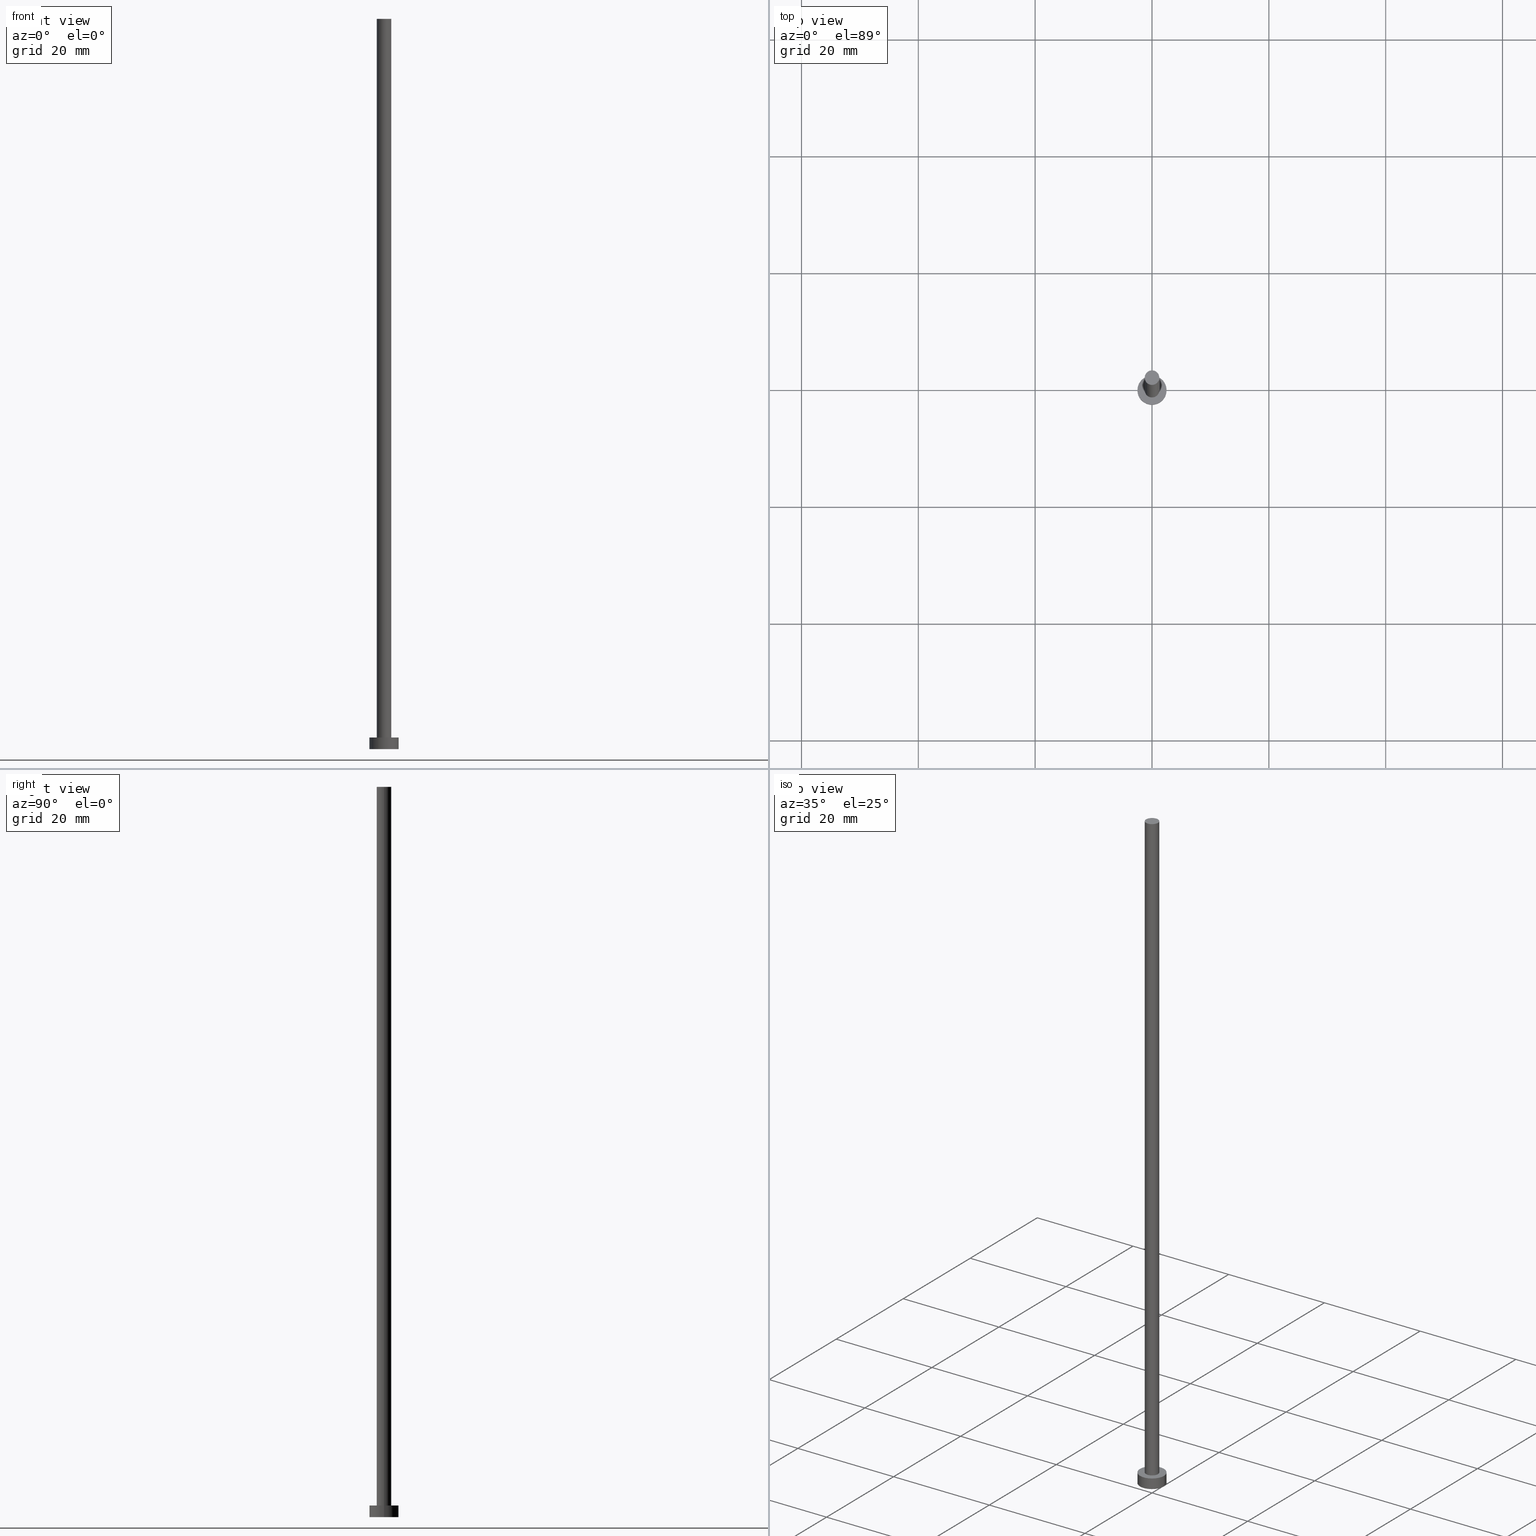
[diagram: canonical four-view strip — front | top / right | iso, engineering-drawing reading convention]
A machine part, canonical four-view strip (front | top / right | iso — engineering-drawing reading convention). The complete STEP part file that produces these views, byte-faithful:
ISO-10303-21;
HEADER;
FILE_DESCRIPTION (( 'STEP AP203' ),
    '1' );
FILE_NAME ('acdf.STEP',
    '2023-02-13T14:28:22',
    ( '' ),
    ( '' ),
    'SwSTEP 2.0',
    'SolidWorks 2019',
    '' );
FILE_SCHEMA (( 'CONFIG_CONTROL_DESIGN' ));
ENDSEC;

DATA;
#1 = CIRCLE ( 'NONE', #147, 1.250000000000000000 ) ;
#2 = ORIENTED_EDGE ( 'NONE', *, *, #86, .F. ) ;
#3 = DIRECTION ( 'NONE',  ( 1.000000000000000000, 0.000000000000000000, -0.000000000000000000 ) ) ;
#4 = DATE_AND_TIME ( #214, #164 ) ;
#5 = CC_DESIGN_DATE_AND_TIME_ASSIGNMENT ( #192, #190, ( #255 ) ) ;
#6 = PERSON_AND_ORGANIZATION ( #58, #231 ) ;
#7 = CARTESIAN_POINT ( 'NONE',  ( 2.500000000000000000, 3.061616997868383141E-16, 2.000000000000000000 ) ) ;
#8 = DIRECTION ( 'NONE',  ( 0.000000000000000000, 0.000000000000000000, 1.000000000000000000 ) ) ;
#9 = EDGE_CURVE ( 'NONE', #245, #208, #239, .T. ) ;
#10 = APPROVAL_DATE_TIME ( #56, #29 ) ;
#11 = DIRECTION ( 'NONE',  ( -0.000000000000000000, -0.000000000000000000, -1.000000000000000000 ) ) ;
#12 = PLANE ( 'NONE',  #114 ) ;
#13 = ORIENTED_EDGE ( 'NONE', *, *, #24, .T. ) ;
#14 = PERSON_AND_ORGANIZATION ( #58, #231 ) ;
#15 = ADVANCED_FACE ( 'NONE', ( #41 ), #99, .T. ) ;
#16 = CARTESIAN_POINT ( 'NONE',  ( 0.000000000000000000, 0.000000000000000000, 2.000000000000000000 ) ) ;
#17 = ORIENTED_EDGE ( 'NONE', *, *, #139, .F. ) ;
#18 = CC_DESIGN_DATE_AND_TIME_ASSIGNMENT ( #136, #177, ( #244 ) ) ;
#19 = ORIENTED_EDGE ( 'NONE', *, *, #24, .F. ) ;
#20 = VECTOR ( 'NONE', #11, 1000.000000000000000 ) ;
#21 = PERSON_AND_ORGANIZATION_ROLE ( 'creator' ) ;
#22 = ORIENTED_EDGE ( 'NONE', *, *, #201, .T. ) ;
#23 = APPROVAL_STATUS ( 'not_yet_approved' ) ;
#24 = EDGE_CURVE ( 'NONE', #78, #216, #228, .T. ) ;
#25 = DIRECTION ( 'NONE',  ( 1.000000000000000000, 0.000000000000000000, -0.000000000000000000 ) ) ;
#26 = COORDINATED_UNIVERSAL_TIME_OFFSET ( 1, 0, .AHEAD. ) ;
#27 = CALENDAR_DATE ( 2023, 13, 2 ) ;
#28 = DIRECTION ( 'NONE',  ( -0.000000000000000000, -0.000000000000000000, -1.000000000000000000 ) ) ;
#29 = APPROVAL ( #109, 'NEUR�EN�' ) ;
#30 = CIRCLE ( 'NONE', #131, 2.500000000000000000 ) ;
#31 = DIRECTION ( 'NONE',  ( 1.000000000000000000, 0.000000000000000000, 0.000000000000000000 ) ) ;
#32 = LOCAL_TIME ( 15, 28, 22.00000000000000000, #129 ) ;
#33 = MANIFOLD_SOLID_BREP ( 'P�idat vysunut�m3', #61 ) ;
#34 = DIRECTION ( 'NONE',  ( 0.000000000000000000, 0.000000000000000000, 1.000000000000000000 ) ) ;
#35 = ADVANCED_FACE ( 'NONE', ( #81 ), #144, .F. ) ;
#36 = CARTESIAN_POINT ( 'NONE',  ( -1.250000000000000000, 0.000000000000000000, 125.0000000000000000 ) ) ;
#37 = CIRCLE ( 'NONE', #206, 1.250000000000000000 ) ;
#38 = ADVANCED_FACE ( 'NONE', ( #191 ), #166, .T. ) ;
#39 = PERSON_AND_ORGANIZATION_ROLE ( 'design_owner' ) ;
#40 = ORIENTED_EDGE ( 'NONE', *, *, #59, .T. ) ;
#41 = FACE_OUTER_BOUND ( 'NONE', #92, .T. ) ;
#42 = ORIENTED_EDGE ( 'NONE', *, *, #145, .T. ) ;
#43 = EDGE_LOOP ( 'NONE', ( #225, #140, #204, #42 ) ) ;
#44 = DIRECTION ( 'NONE',  ( 0.000000000000000000, 0.000000000000000000, 1.000000000000000000 ) ) ;
#45 = VERTEX_POINT ( 'NONE', #135 ) ;
#46 = DIRECTION ( 'NONE',  ( -1.000000000000000000, 0.000000000000000000, 0.000000000000000000 ) ) ;
#47 = PERSON_AND_ORGANIZATION ( #58, #231 ) ;
#48 = CC_DESIGN_PERSON_AND_ORGANIZATION_ASSIGNMENT ( #246, #87, ( #180 ) ) ;
#49 = CARTESIAN_POINT ( 'NONE',  ( 0.000000000000000000, 0.000000000000000000, 2.000000000000000000 ) ) ;
#50 = CARTESIAN_POINT ( 'NONE',  ( -2.500000000000000000, 0.000000000000000000, 2.000000000000000000 ) ) ;
#51 = AXIS2_PLACEMENT_3D ( 'NONE', #66, #184, #3 ) ;
#52 = SHAPE_DEFINITION_REPRESENTATION ( #170, #199 ) ;
#53 = DIRECTION ( 'NONE',  ( -0.000000000000000000, -0.000000000000000000, -1.000000000000000000 ) ) ;
#54 = CARTESIAN_POINT ( 'NONE',  ( 1.250000000000000000, 1.530808498934191571E-16, 125.0000000000000000 ) ) ;
#55 = ADVANCED_FACE ( 'NONE', ( #88, #251 ), #12, .T. ) ;
#56 = DATE_AND_TIME ( #253, #117 ) ;
#57 = AXIS2_PLACEMENT_3D ( 'NONE', #79, #123, #162 ) ;
#58 = PERSON ( 'NEUR�EN�', 'NEUR�EN�', 'NEUR�EN�', ('NEUR�EN�'), ('NEUR�EN�'), ('NEUR�EN�') ) ;
#59 = EDGE_CURVE ( 'NONE', #216, #78, #1, .T. ) ;
#60 = CIRCLE ( 'NONE', #63, 2.500000000000000000 ) ;
#61 = CLOSED_SHELL ( 'NONE', ( #38, #115, #120, #55, #35, #209, #15 ) ) ;
#62 = ORIENTED_EDGE ( 'NONE', *, *, #64, .F. ) ;
#63 = AXIS2_PLACEMENT_3D ( 'NONE', #90, #72, #234 ) ;
#64 = EDGE_CURVE ( 'NONE', #208, #245, #37, .T. ) ;
#65 = EDGE_LOOP ( 'NONE', ( #235, #62 ) ) ;
#66 = CARTESIAN_POINT ( 'NONE',  ( 0.000000000000000000, 0.000000000000000000, 125.0000000000000000 ) ) ;
#67 = DATE_AND_TIME ( #27, #70 ) ;
#68 = DIRECTION ( 'NONE',  ( 1.000000000000000000, 0.000000000000000000, 0.000000000000000000 ) ) ;
#69 = AXIS2_PLACEMENT_3D ( 'NONE', #247, #138, #224 ) ;
#70 = LOCAL_TIME ( 15, 28, 22.00000000000000000, #127 ) ;
#71 = ORIENTED_EDGE ( 'NONE', *, *, #9, .T. ) ;
#72 = DIRECTION ( 'NONE',  ( 0.000000000000000000, 0.000000000000000000, 1.000000000000000000 ) ) ;
#73 = CALENDAR_DATE ( 2023, 13, 2 ) ;
#74 = CARTESIAN_POINT ( 'NONE',  ( 2.500000000000000000, 3.061616997868383141E-16, 2.000000000000000000 ) ) ;
#75 = CARTESIAN_POINT ( 'NONE',  ( -1.250000000000000000, 0.000000000000000000, 125.0000000000000000 ) ) ;
#76 = CC_DESIGN_SECURITY_CLASSIFICATION ( #244, ( #180 ) ) ;
#77 = APPROVAL_ROLE ( '' ) ;
#78 = VERTEX_POINT ( 'NONE', #36 ) ;
#79 = CARTESIAN_POINT ( 'NONE',  ( 0.000000000000000000, 0.000000000000000000, 125.0000000000000000 ) ) ;
#80 = ORIENTED_EDGE ( 'NONE', *, *, #179, .T. ) ;
#81 = FACE_OUTER_BOUND ( 'NONE', #121, .T. ) ;
#82 = APPROVAL_DATE_TIME ( #4, #222 ) ;
#83 = APPLICATION_CONTEXT ( 'configuration controlled 3d designs of mechanical parts and assemblies' ) ;
#84 = DESIGN_CONTEXT ( 'detailed design', #83, 'design' ) ;
#85 = ORIENTED_EDGE ( 'NONE', *, *, #194, .F. ) ;
#86 = EDGE_CURVE ( 'NONE', #216, #208, #93, .T. ) ;
#87 = PERSON_AND_ORGANIZATION_ROLE ( 'design_supplier' ) ;
#88 = FACE_BOUND ( 'NONE', #65, .T. ) ;
#89 = CARTESIAN_POINT ( 'NONE',  ( 0.000000000000000000, 0.000000000000000000, 0.000000000000000000 ) ) ;
#90 = CARTESIAN_POINT ( 'NONE',  ( 0.000000000000000000, 0.000000000000000000, 2.000000000000000000 ) ) ;
#91 = DIRECTION ( 'NONE',  ( -0.000000000000000000, -0.000000000000000000, -1.000000000000000000 ) ) ;
#92 = EDGE_LOOP ( 'NONE', ( #13, #40 ) ) ;
#93 = LINE ( 'NONE', #215, #119 ) ;
#94 = APPROVAL_PERSON_ORGANIZATION ( #6, #222, #229 ) ;
#95 = VECTOR ( 'NONE', #252, 1000.000000000000000 ) ;
#96 = CC_DESIGN_APPROVAL ( #111, ( #255 ) ) ;
#97 = CC_DESIGN_PERSON_AND_ORGANIZATION_ASSIGNMENT ( #106, #21, ( #255 ) ) ;
#98 = APPLICATION_PROTOCOL_DEFINITION ( 'international standard', 'config_control_design', 1994, #102 ) ;
#99 = PLANE ( 'NONE',  #51 ) ;
#100 = ORIENTED_EDGE ( 'NONE', *, *, #194, .T. ) ;
#101 = CALENDAR_DATE ( 2023, 13, 2 ) ;
#102 = APPLICATION_CONTEXT ( 'configuration controlled 3d designs of mechanical parts and assemblies' ) ;
#103 = ORIENTED_EDGE ( 'NONE', *, *, #118, .F. ) ;
#104 = APPROVAL_DATE_TIME ( #67, #111 ) ;
#105 = EDGE_LOOP ( 'NONE', ( #151, #243, #210, #85 ) ) ;
#106 = PERSON_AND_ORGANIZATION ( #58, #231 ) ;
#107 = DIRECTION ( 'NONE',  ( 0.000000000000000000, 0.000000000000000000, 1.000000000000000000 ) ) ;
#108 = PERSON_AND_ORGANIZATION_ROLE ( 'classification_officer' ) ;
#109 = APPROVAL_STATUS ( 'not_yet_approved' ) ;
#110 = LINE ( 'NONE', #74, #124 ) ;
#111 = APPROVAL ( #23, 'NEUR�EN�' ) ;
#112 = CARTESIAN_POINT ( 'NONE',  ( -2.500000000000000000, 0.000000000000000000, 2.000000000000000000 ) ) ;
#113 = FACE_OUTER_BOUND ( 'NONE', #163, .T. ) ;
#114 = AXIS2_PLACEMENT_3D ( 'NONE', #134, #197, #130 ) ;
#115 = ADVANCED_FACE ( 'NONE', ( #113 ), #202, .T. ) ;
#116 = COORDINATED_UNIVERSAL_TIME_OFFSET ( 1, 0, .AHEAD. ) ;
#117 = LOCAL_TIME ( 15, 28, 22.00000000000000000, #116 ) ;
#118 = EDGE_CURVE ( 'NONE', #45, #183, #30, .T. ) ;
#119 = VECTOR ( 'NONE', #28, 1000.000000000000000 ) ;
#120 = ADVANCED_FACE ( 'NONE', ( #172 ), #169, .T. ) ;
#121 = EDGE_LOOP ( 'NONE', ( #174, #103 ) ) ;
#122 = CARTESIAN_POINT ( 'NONE',  ( 0.000000000000000000, 0.000000000000000000, 0.000000000000000000 ) ) ;
#123 = DIRECTION ( 'NONE',  ( 0.000000000000000000, 0.000000000000000000, 1.000000000000000000 ) ) ;
#124 = VECTOR ( 'NONE', #157, 1000.000000000000000 ) ;
#125 = MECHANICAL_CONTEXT ( 'NONE', #102, 'mechanical' ) ;
#126 = CARTESIAN_POINT ( 'NONE',  ( -1.250000000000000000, 0.000000000000000000, 2.000000000000000000 ) ) ;
#127 = COORDINATED_UNIVERSAL_TIME_OFFSET ( 1, 0, .AHEAD. ) ;
#128 = DIRECTION ( 'NONE',  ( 1.000000000000000000, 0.000000000000000000, 0.000000000000000000 ) ) ;
#129 = COORDINATED_UNIVERSAL_TIME_OFFSET ( 1, 0, .AHEAD. ) ;
#130 = DIRECTION ( 'NONE',  ( 1.000000000000000000, 0.000000000000000000, -0.000000000000000000 ) ) ;
#131 = AXIS2_PLACEMENT_3D ( 'NONE', #89, #107, #220 ) ;
#132 = AXIS2_PLACEMENT_3D ( 'NONE', #230, #236, #46 ) ;
#133 = LOCAL_TIME ( 15, 28, 22.00000000000000000, #26 ) ;
#134 = CARTESIAN_POINT ( 'NONE',  ( 0.000000000000000000, 0.000000000000000000, 2.000000000000000000 ) ) ;
#135 = CARTESIAN_POINT ( 'NONE',  ( 2.500000000000000000, 3.061616997868383141E-16, 0.000000000000000000 ) ) ;
#136 = DATE_AND_TIME ( #73, #32 ) ;
#137 =( NAMED_UNIT ( * ) PLANE_ANGLE_UNIT ( ) SI_UNIT ( $, .RADIAN. ) );
#138 = DIRECTION ( 'NONE',  ( -0.000000000000000000, -0.000000000000000000, -1.000000000000000000 ) ) ;
#139 = EDGE_CURVE ( 'NONE', #182, #183, #250, .T. ) ;
#140 = ORIENTED_EDGE ( 'NONE', *, *, #160, .F. ) ;
#141 = AXIS2_PLACEMENT_3D ( 'NONE', #161, #187, #241 ) ;
#142 = EDGE_LOOP ( 'NONE', ( #2, #19, #100, #71 ) ) ;
#143 = EDGE_LOOP ( 'NONE', ( #207, #80 ) ) ;
#144 = PLANE ( 'NONE',  #156 ) ;
#145 = EDGE_CURVE ( 'NONE', #183, #45, #175, .T. ) ;
#146 = COORDINATED_UNIVERSAL_TIME_OFFSET ( 1, 0, .AHEAD. ) ;
#147 = AXIS2_PLACEMENT_3D ( 'NONE', #150, #233, #198 ) ;
#148 = CARTESIAN_POINT ( 'NONE',  ( -2.500000000000000000, 0.000000000000000000, 0.000000000000000000 ) ) ;
#149 = AXIS2_PLACEMENT_3D ( 'NONE', #122, #44, #195 ) ;
#150 = CARTESIAN_POINT ( 'NONE',  ( 0.000000000000000000, 0.000000000000000000, 125.0000000000000000 ) ) ;
#151 = ORIENTED_EDGE ( 'NONE', *, *, #59, .F. ) ;
#152 = APPLICATION_PROTOCOL_DEFINITION ( 'international standard', 'config_control_design', 1994, #83 ) ;
#153 = DIRECTION ( 'NONE',  ( -1.000000000000000000, 0.000000000000000000, 0.000000000000000000 ) ) ;
#154 = ORIENTED_EDGE ( 'NONE', *, *, #118, .T. ) ;
#155 = CYLINDRICAL_SURFACE ( 'NONE', #132, 1.250000000000000000 ) ;
#156 = AXIS2_PLACEMENT_3D ( 'NONE', #227, #212, #25 ) ;
#157 = DIRECTION ( 'NONE',  ( -0.000000000000000000, -0.000000000000000000, -1.000000000000000000 ) ) ;
#158 = CC_DESIGN_PERSON_AND_ORGANIZATION_ASSIGNMENT ( #47, #108, ( #244 ) ) ;
#159 = APPROVAL_PERSON_ORGANIZATION ( #14, #29, #77 ) ;
#160 = EDGE_CURVE ( 'NONE', #182, #171, #60, .T. ) ;
#161 = CARTESIAN_POINT ( 'NONE',  ( 0.000000000000000000, 0.000000000000000000, 2.000000000000000000 ) ) ;
#162 = DIRECTION ( 'NONE',  ( 1.000000000000000000, 0.000000000000000000, 0.000000000000000000 ) ) ;
#163 = EDGE_LOOP ( 'NONE', ( #226, #22, #154, #17 ) ) ;
#164 = LOCAL_TIME ( 15, 28, 22.00000000000000000, #146 ) ;
#165 = PERSON_AND_ORGANIZATION_ROLE ( 'creator' ) ;
#166 = CYLINDRICAL_SURFACE ( 'NONE', #69, 1.250000000000000000 ) ;
#167 = PERSON_AND_ORGANIZATION ( #58, #231 ) ;
#168 = CARTESIAN_POINT ( 'NONE',  ( 0.000000000000000000, 0.000000000000000000, 2.000000000000000000 ) ) ;
#169 = CYLINDRICAL_SURFACE ( 'NONE', #188, 2.500000000000000000 ) ;
#170 = PRODUCT_DEFINITION_SHAPE ( 'NONE', 'NONE',  #255 ) ;
#171 = VERTEX_POINT ( 'NONE', #7 ) ;
#172 = FACE_OUTER_BOUND ( 'NONE', #43, .T. ) ;
#173 = DIRECTION ( 'NONE',  ( -1.000000000000000000, 0.000000000000000000, 0.000000000000000000 ) ) ;
#174 = ORIENTED_EDGE ( 'NONE', *, *, #145, .F. ) ;
#175 = CIRCLE ( 'NONE', #219, 2.500000000000000000 ) ;
#176 = CARTESIAN_POINT ( 'NONE',  ( 0.000000000000000000, 0.000000000000000000, 0.000000000000000000 ) ) ;
#177 = DATE_TIME_ROLE ( 'classification_date' ) ;
#178 = AXIS2_PLACEMENT_3D ( 'NONE', #168, #91, #153 ) ;
#179 = EDGE_CURVE ( 'NONE', #171, #182, #218, .T. ) ;
#180 = PRODUCT_DEFINITION_FORMATION_WITH_SPECIFIED_SOURCE ( 'LIBOVOLN�', '', #254, .NOT_KNOWN. ) ;
#181 = APPROVAL_PERSON_ORGANIZATION ( #167, #111, #205 ) ;
#182 = VERTEX_POINT ( 'NONE', #112 ) ;
#183 = VERTEX_POINT ( 'NONE', #148 ) ;
#184 = DIRECTION ( 'NONE',  ( 0.000000000000000000, 0.000000000000000000, 1.000000000000000000 ) ) ;
#185 = APPROVAL_STATUS ( 'not_yet_approved' ) ;
#186 = PRODUCT_RELATED_PRODUCT_CATEGORY ( 'detail', '', ( #254 ) ) ;
#187 = DIRECTION ( 'NONE',  ( 0.000000000000000000, 0.000000000000000000, 1.000000000000000000 ) ) ;
#188 = AXIS2_PLACEMENT_3D ( 'NONE', #16, #53, #173 ) ;
#189 = CC_DESIGN_APPROVAL ( #29, ( #244 ) ) ;
#190 = DATE_TIME_ROLE ( 'creation_date' ) ;
#191 = FACE_OUTER_BOUND ( 'NONE', #105, .T. ) ;
#192 = DATE_AND_TIME ( #101, #133 ) ;
#193 = CARTESIAN_POINT ( 'NONE',  ( 0.000000000000000000, 0.000000000000000000, 2.000000000000000000 ) ) ;
#194 = EDGE_CURVE ( 'NONE', #78, #245, #221, .T. ) ;
#195 = DIRECTION ( 'NONE',  ( 1.000000000000000000, 0.000000000000000000, 0.000000000000000000 ) ) ;
#196 = UNCERTAINTY_MEASURE_WITH_UNIT (LENGTH_MEASURE( 1.000000000000000082E-05 ), #249, 'distance_accuracy_value', 'NONE');
#197 = DIRECTION ( 'NONE',  ( 0.000000000000000000, 0.000000000000000000, 1.000000000000000000 ) ) ;
#198 = DIRECTION ( 'NONE',  ( 1.000000000000000000, 0.000000000000000000, 0.000000000000000000 ) ) ;
#199 = ADVANCED_BREP_SHAPE_REPRESENTATION ( 'acdf', ( #33, #149 ), #203 ) ;
#200 = CARTESIAN_POINT ( 'NONE',  ( 1.250000000000000000, 1.530808498934191571E-16, 2.000000000000000000 ) ) ;
#201 = EDGE_CURVE ( 'NONE', #171, #45, #110, .T. ) ;
#202 = CYLINDRICAL_SURFACE ( 'NONE', #178, 2.500000000000000000 ) ;
#203 =( GEOMETRIC_REPRESENTATION_CONTEXT ( 3 ) GLOBAL_UNCERTAINTY_ASSIGNED_CONTEXT ( ( #196 ) ) GLOBAL_UNIT_ASSIGNED_CONTEXT ( ( #249, #137, #240 ) ) REPRESENTATION_CONTEXT ( 'NONE', 'WORKASPACE' ) );
#204 = ORIENTED_EDGE ( 'NONE', *, *, #139, .T. ) ;
#205 = APPROVAL_ROLE ( '' ) ;
#206 = AXIS2_PLACEMENT_3D ( 'NONE', #49, #8, #128 ) ;
#207 = ORIENTED_EDGE ( 'NONE', *, *, #160, .T. ) ;
#208 = VERTEX_POINT ( 'NONE', #200 ) ;
#209 = ADVANCED_FACE ( 'NONE', ( #238 ), #155, .T. ) ;
#210 = ORIENTED_EDGE ( 'NONE', *, *, #64, .T. ) ;
#211 = PERSON_AND_ORGANIZATION ( #58, #231 ) ;
#212 = DIRECTION ( 'NONE',  ( 0.000000000000000000, 0.000000000000000000, 1.000000000000000000 ) ) ;
#213 = AXIS2_PLACEMENT_3D ( 'NONE', #193, #34, #31 ) ;
#214 = CALENDAR_DATE ( 2023, 13, 2 ) ;
#215 = CARTESIAN_POINT ( 'NONE',  ( 1.250000000000000000, 1.530808498934191571E-16, 125.0000000000000000 ) ) ;
#216 = VERTEX_POINT ( 'NONE', #54 ) ;
#217 = DIRECTION ( 'NONE',  ( 0.000000000000000000, 0.000000000000000000, 1.000000000000000000 ) ) ;
#218 = CIRCLE ( 'NONE', #213, 2.500000000000000000 ) ;
#219 = AXIS2_PLACEMENT_3D ( 'NONE', #176, #217, #68 ) ;
#220 = DIRECTION ( 'NONE',  ( 1.000000000000000000, 0.000000000000000000, 0.000000000000000000 ) ) ;
#221 = LINE ( 'NONE', #75, #20 ) ;
#222 = APPROVAL ( #185, 'NEUR�EN�' ) ;
#223 = CC_DESIGN_PERSON_AND_ORGANIZATION_ASSIGNMENT ( #232, #165, ( #180 ) ) ;
#224 = DIRECTION ( 'NONE',  ( -1.000000000000000000, 0.000000000000000000, 0.000000000000000000 ) ) ;
#225 = ORIENTED_EDGE ( 'NONE', *, *, #201, .F. ) ;
#226 = ORIENTED_EDGE ( 'NONE', *, *, #179, .F. ) ;
#227 = CARTESIAN_POINT ( 'NONE',  ( 0.000000000000000000, 0.000000000000000000, 0.000000000000000000 ) ) ;
#228 = CIRCLE ( 'NONE', #57, 1.250000000000000000 ) ;
#229 = APPROVAL_ROLE ( '' ) ;
#230 = CARTESIAN_POINT ( 'NONE',  ( 0.000000000000000000, 0.000000000000000000, 125.0000000000000000 ) ) ;
#231 = ORGANIZATION ( 'NEUR�EN�', 'NEUR�EN�', '' ) ;
#232 = PERSON_AND_ORGANIZATION ( #58, #231 ) ;
#233 = DIRECTION ( 'NONE',  ( 0.000000000000000000, 0.000000000000000000, 1.000000000000000000 ) ) ;
#234 = DIRECTION ( 'NONE',  ( 1.000000000000000000, 0.000000000000000000, 0.000000000000000000 ) ) ;
#235 = ORIENTED_EDGE ( 'NONE', *, *, #9, .F. ) ;
#236 = DIRECTION ( 'NONE',  ( -0.000000000000000000, -0.000000000000000000, -1.000000000000000000 ) ) ;
#237 = CC_DESIGN_PERSON_AND_ORGANIZATION_ASSIGNMENT ( #211, #39, ( #254 ) ) ;
#238 = FACE_OUTER_BOUND ( 'NONE', #142, .T. ) ;
#239 = CIRCLE ( 'NONE', #141, 1.250000000000000000 ) ;
#240 =( NAMED_UNIT ( * ) SI_UNIT ( $, .STERADIAN. ) SOLID_ANGLE_UNIT ( ) );
#241 = DIRECTION ( 'NONE',  ( 1.000000000000000000, 0.000000000000000000, 0.000000000000000000 ) ) ;
#242 = CC_DESIGN_APPROVAL ( #222, ( #180 ) ) ;
#243 = ORIENTED_EDGE ( 'NONE', *, *, #86, .T. ) ;
#244 = SECURITY_CLASSIFICATION ( '', '', #248 ) ;
#245 = VERTEX_POINT ( 'NONE', #126 ) ;
#246 = PERSON_AND_ORGANIZATION ( #58, #231 ) ;
#247 = CARTESIAN_POINT ( 'NONE',  ( 0.000000000000000000, 0.000000000000000000, 125.0000000000000000 ) ) ;
#248 = SECURITY_CLASSIFICATION_LEVEL ( 'unclassified' ) ;
#249 =( LENGTH_UNIT ( ) NAMED_UNIT ( * ) SI_UNIT ( .MILLI., .METRE. ) );
#250 = LINE ( 'NONE', #50, #95 ) ;
#251 = FACE_OUTER_BOUND ( 'NONE', #143, .T. ) ;
#252 = DIRECTION ( 'NONE',  ( -0.000000000000000000, -0.000000000000000000, -1.000000000000000000 ) ) ;
#253 = CALENDAR_DATE ( 2023, 13, 2 ) ;
#254 = PRODUCT ( 'acdf', 'acdf', '', ( #125 ) ) ;
#255 = PRODUCT_DEFINITION ( 'NEZN�M�', '', #180, #84 ) ;
ENDSEC;
END-ISO-10303-21;
